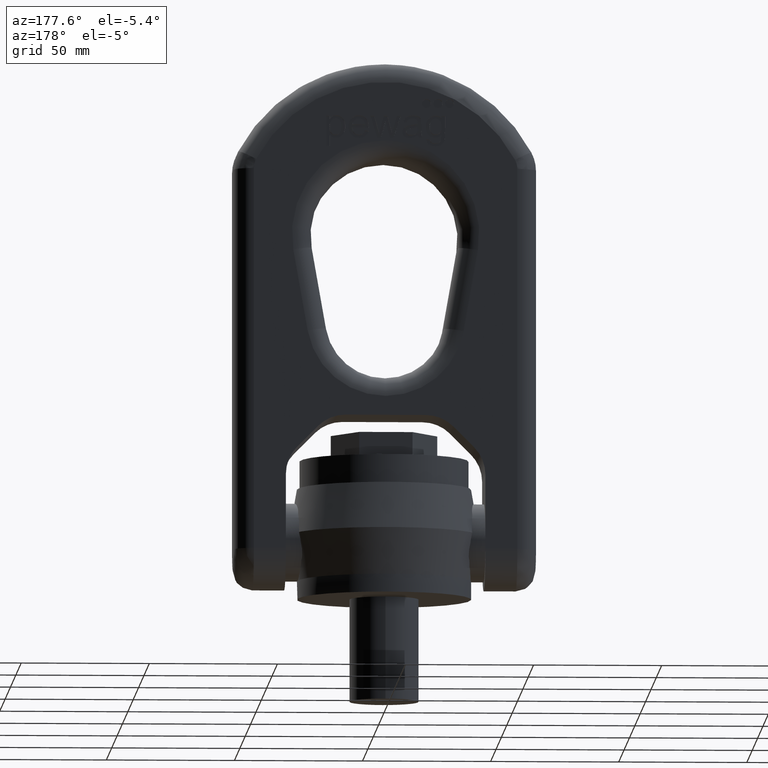
[diagram: clean part render]
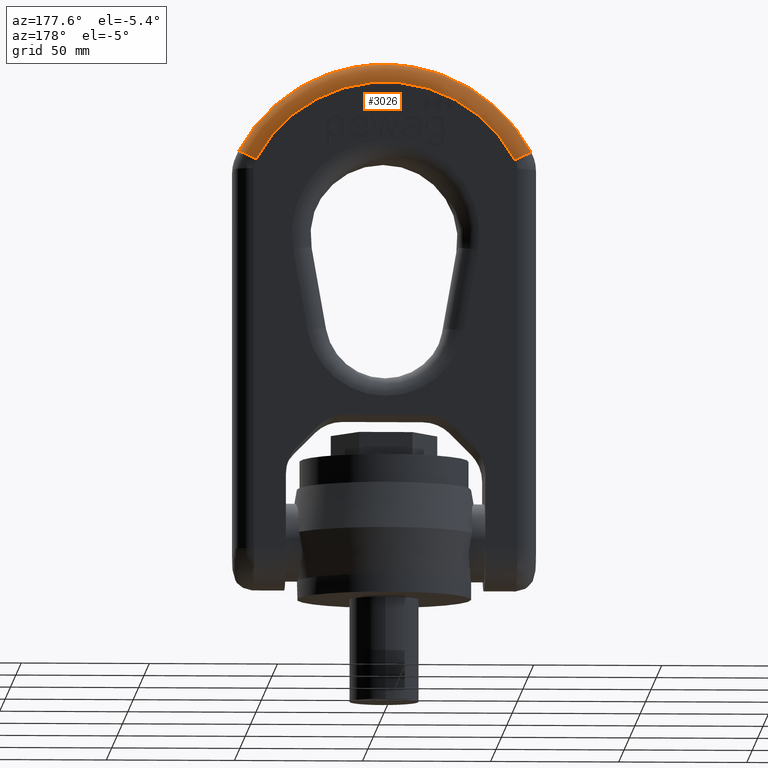
[diagram: same view with one face highlighted and labeled with its STEP entity id]
A machine part, auxiliary view. The second image highlights one B-rep face of the part: STEP entity #3026.
In plain terms, the highlighted toroidal blend (fillet) surface has major radius 57.2026 mm and minor (blend) radius 7.6 mm.
Its self-contained STEP definition (entity closure, byte-faithful):
#202=TOROIDAL_SURFACE('',#6041,57.2026315789474,7.6);
#2651=FACE_OUTER_BOUND('',#3419,.T.);
#3026=ADVANCED_FACE('',(#2651),#202,.T.);
#3419=EDGE_LOOP('',(#4641,#4642,#4643,#4644));
#4641=ORIENTED_EDGE('',*,*,#5734,.T.);
#4642=ORIENTED_EDGE('',*,*,#5369,.F.);
#4643=ORIENTED_EDGE('',*,*,#5736,.F.);
#4644=ORIENTED_EDGE('',*,*,#5280,.F.);
#4831=VERTEX_POINT('',#7404);
#4841=VERTEX_POINT('',#7426);
#4928=VERTEX_POINT('',#7762);
#4929=VERTEX_POINT('',#7764);
#5280=EDGE_CURVE('',#4841,#4831,#5783,.T.);
#5369=EDGE_CURVE('',#4928,#4929,#5791,.T.);
#5734=EDGE_CURVE('',#4841,#4929,#5812,.T.);
#5736=EDGE_CURVE('',#4831,#4928,#5814,.T.);
#5783=CIRCLE('',#5890,57.2026315789474);
#5791=CIRCLE('',#5904,64.8026315789474);
#5812=CIRCLE('',#6037,7.6);
#5814=CIRCLE('',#6040,7.6);
#5890=AXIS2_PLACEMENT_3D('',#7427,#6285,#6286);
#5904=AXIS2_PLACEMENT_3D('',#7763,#6360,#6361);
#6037=AXIS2_PLACEMENT_3D('',#9754,#6882,#6883);
#6040=AXIS2_PLACEMENT_3D('',#9773,#6888,#6889);
#6041=AXIS2_PLACEMENT_3D('',#9774,#6890,#6891);
#6285=DIRECTION('',(2.34291072916505E-15,1.,0.));
#6286=DIRECTION('',(-1.,2.33509724925617E-15,0.));
#6360=DIRECTION('',(-2.34291072916505E-15,-1.,0.));
#6361=DIRECTION('',(-1.,2.34231697771488E-15,0.));
#6882=DIRECTION('',(0.469339749287084,-1.28553897046954E-15,0.883017666719719));
#6883=DIRECTION('',(0.883017666719719,0.,-0.469339749287084));
#6888=DIRECTION('',(0.46933974928708,-1.28553897046953E-15,-0.883017666719721));
#6889=DIRECTION('',(-0.883017666719721,0.,-0.46933974928708));
#6890=DIRECTION('',(2.34291072916505E-15,1.,0.));
#6891=DIRECTION('',(-1.,2.34231697771488E-15,0.));
#7404=CARTESIAN_POINT('',(50.5109342670699,15.1999999999999,171.044837184877));
#7426=CARTESIAN_POINT('',(-50.5109342670699,15.2000000000001,171.044837184877));
#7427=CARTESIAN_POINT('',(1.78061215416544E-14,15.2,144.197368421053));
#7762=CARTESIAN_POINT('',(57.2218685341398,7.59999999999985,174.611819279459));
#7763=CARTESIAN_POINT('',(0.,7.59999999999998,144.197368421053));
#7764=CARTESIAN_POINT('',(-57.2218685341398,7.60000000000012,174.611819279459));
#9754=CARTESIAN_POINT('',(-50.5109342670699,7.60000000000012,171.044837184877));
#9773=CARTESIAN_POINT('',(50.5109342670699,7.59999999999988,171.044837184877));
#9774=CARTESIAN_POINT('',(0.,7.6,144.197368421053));